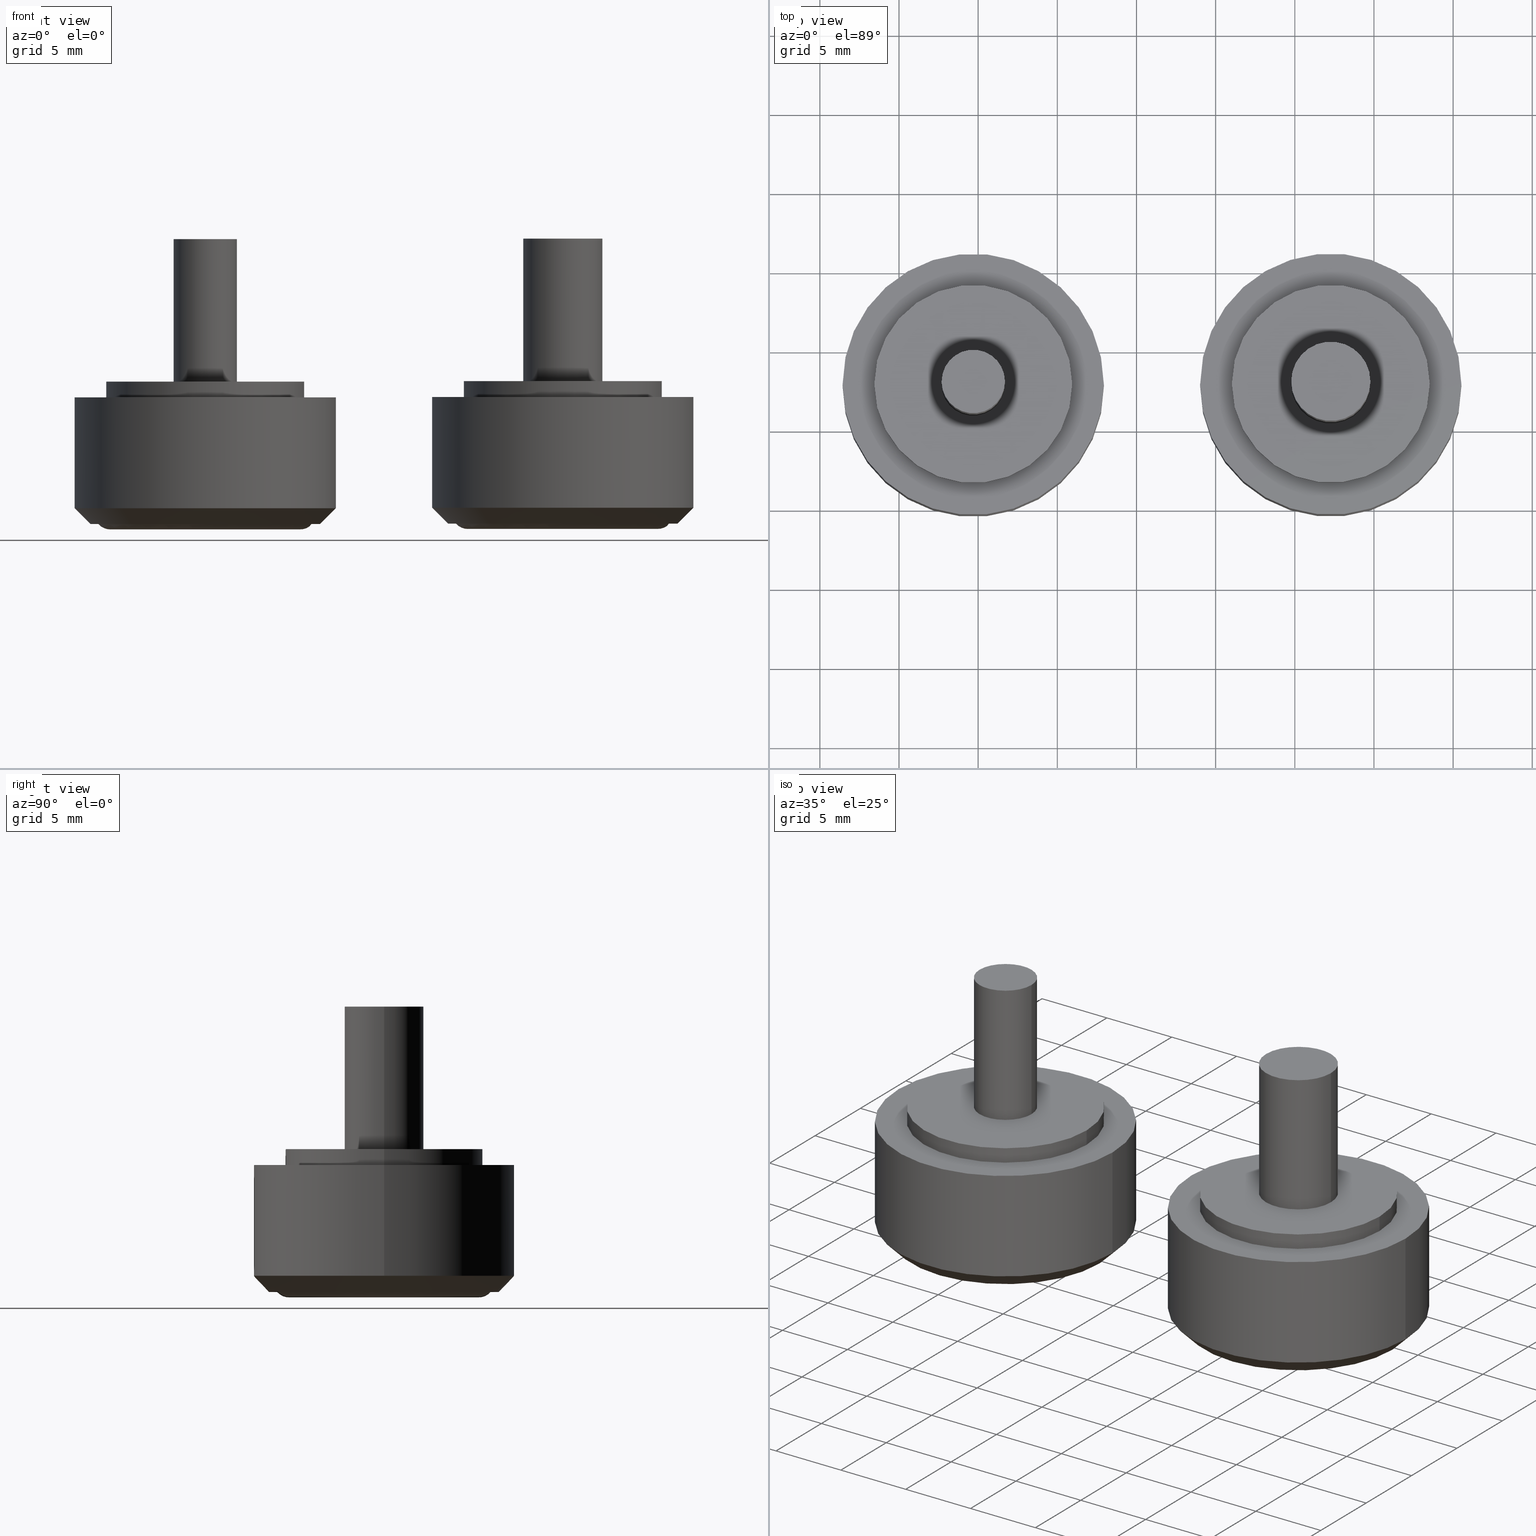
[diagram: canonical four-view strip — front | top / right | iso, engineering-drawing reading convention]
A machine part, canonical four-view strip (front | top / right | iso — engineering-drawing reading convention). The complete STEP part file that produces these views, byte-faithful:
ISO-10303-21;
HEADER;
/* Generated by software containing ST-Developer
 * from STEP Tools, Inc. (www.steptools.com) 
 */

FILE_DESCRIPTION(
/* description */ (''),
/* implementation_level */ '2;1');

FILE_NAME(
/* name */ '\\\\SYNOLOGYNAS\\web\\db2\\PRM4-1\\\X2\B3C4BA74\X0\\\PRM4-
1_M.stp',
/* time_stamp */ '2023-05-04T16:10:28+09:00',
/* author */ ('user'),
/* organization */ (''),
/* preprocessor_version */ 'ST-DEVELOPER v15.6',
/* originating_system */ 'Autodesk Inventor 2015',
/* authorisation */ '');

FILE_SCHEMA (('AUTOMOTIVE_DESIGN { 1 0 10303 214 3 1 1 }'));
ENDSEC;

DATA;
#10=MECHANICAL_DESIGN_GEOMETRIC_PRESENTATION_REPRESENTATION('',(#23,#24),
#508);
#11=ITEM_DEFINED_TRANSFORMATION($,$,#275,#324);
#12=ITEM_DEFINED_TRANSFORMATION($,$,#299,#325);
#13=(
REPRESENTATION_RELATIONSHIP($,$,#523,#525)
REPRESENTATION_RELATIONSHIP_WITH_TRANSFORMATION(#11)
SHAPE_REPRESENTATION_RELATIONSHIP()
);
#14=(
REPRESENTATION_RELATIONSHIP($,$,#524,#525)
REPRESENTATION_RELATIONSHIP_WITH_TRANSFORMATION(#12)
SHAPE_REPRESENTATION_RELATIONSHIP()
);
#15=CONTEXT_DEPENDENT_SHAPE_REPRESENTATION(#13,#521);
#16=CONTEXT_DEPENDENT_SHAPE_REPRESENTATION(#14,#522);
#17=NEXT_ASSEMBLY_USAGE_OCCURRENCE('DR_PRM4-1:1',$,$,#529,#527,$);
#18=NEXT_ASSEMBLY_USAGE_OCCURRENCE('DR_PRM5-1:1',$,$,#529,#528,$);
#19=SHAPE_REPRESENTATION_RELATIONSHIP('SRR','None',#523,#21);
#20=SHAPE_REPRESENTATION_RELATIONSHIP('SRR','None',#524,#22);
#21=ADVANCED_BREP_SHAPE_REPRESENTATION($,(#25),#505);
#22=ADVANCED_BREP_SHAPE_REPRESENTATION($,(#26),#506);
#23=STYLED_ITEM('',(#542),#25);
#24=STYLED_ITEM('',(#543),#26);
#25=MANIFOLD_SOLID_BREP('\X2\C194B9ACB4DC\X0\1',#273);
#26=MANIFOLD_SOLID_BREP('\X2\C194B9ACB4DC\X0\1',#274);
#27=CONICAL_SURFACE('',#289,7.75,45.);
#28=CONICAL_SURFACE('',#313,7.75,45.);
#29=TOROIDAL_SURFACE('',#280,2.5,1.);
#30=TOROIDAL_SURFACE('',#283,6.,1.);
#31=TOROIDAL_SURFACE('',#304,2.5,1.);
#32=TOROIDAL_SURFACE('',#307,6.,1.);
#33=PLANE('',#279);
#34=PLANE('',#286);
#35=PLANE('',#288);
#36=PLANE('',#293);
#37=PLANE('',#297);
#38=PLANE('',#298);
#39=PLANE('',#303);
#40=PLANE('',#310);
#41=PLANE('',#312);
#42=PLANE('',#317);
#43=PLANE('',#321);
#44=PLANE('',#322);
#45=FACE_BOUND('',#90,.T.);
#46=FACE_BOUND('',#93,.T.);
#47=FACE_BOUND('',#95,.T.);
#48=FACE_BOUND('',#97,.T.);
#49=FACE_BOUND('',#99,.T.);
#50=FACE_BOUND('',#101,.T.);
#51=FACE_BOUND('',#103,.T.);
#52=FACE_BOUND('',#106,.T.);
#53=FACE_BOUND('',#108,.T.);
#54=FACE_BOUND('',#110,.T.);
#55=FACE_BOUND('',#112,.T.);
#56=FACE_BOUND('',#115,.T.);
#57=FACE_BOUND('',#117,.T.);
#58=FACE_BOUND('',#119,.T.);
#59=FACE_BOUND('',#121,.T.);
#60=FACE_BOUND('',#123,.T.);
#61=FACE_BOUND('',#125,.T.);
#62=FACE_BOUND('',#128,.T.);
#63=FACE_BOUND('',#130,.T.);
#64=FACE_BOUND('',#132,.T.);
#65=FACE_OUTER_BOUND('',#89,.T.);
#66=FACE_OUTER_BOUND('',#91,.T.);
#67=FACE_OUTER_BOUND('',#92,.T.);
#68=FACE_OUTER_BOUND('',#94,.T.);
#69=FACE_OUTER_BOUND('',#96,.T.);
#70=FACE_OUTER_BOUND('',#98,.T.);
#71=FACE_OUTER_BOUND('',#100,.T.);
#72=FACE_OUTER_BOUND('',#102,.T.);
#73=FACE_OUTER_BOUND('',#104,.T.);
#74=FACE_OUTER_BOUND('',#105,.T.);
#75=FACE_OUTER_BOUND('',#107,.T.);
#76=FACE_OUTER_BOUND('',#109,.T.);
#77=FACE_OUTER_BOUND('',#111,.T.);
#78=FACE_OUTER_BOUND('',#113,.T.);
#79=FACE_OUTER_BOUND('',#114,.T.);
#80=FACE_OUTER_BOUND('',#116,.T.);
#81=FACE_OUTER_BOUND('',#118,.T.);
#82=FACE_OUTER_BOUND('',#120,.T.);
#83=FACE_OUTER_BOUND('',#122,.T.);
#84=FACE_OUTER_BOUND('',#124,.T.);
#85=FACE_OUTER_BOUND('',#126,.T.);
#86=FACE_OUTER_BOUND('',#127,.T.);
#87=FACE_OUTER_BOUND('',#129,.T.);
#88=FACE_OUTER_BOUND('',#131,.T.);
#89=EDGE_LOOP('',(#199));
#90=EDGE_LOOP('',(#200));
#91=EDGE_LOOP('',(#201));
#92=EDGE_LOOP('',(#202));
#93=EDGE_LOOP('',(#203));
#94=EDGE_LOOP('',(#204));
#95=EDGE_LOOP('',(#205));
#96=EDGE_LOOP('',(#206));
#97=EDGE_LOOP('',(#207));
#98=EDGE_LOOP('',(#208));
#99=EDGE_LOOP('',(#209));
#100=EDGE_LOOP('',(#210));
#101=EDGE_LOOP('',(#211));
#102=EDGE_LOOP('',(#212));
#103=EDGE_LOOP('',(#213));
#104=EDGE_LOOP('',(#214));
#105=EDGE_LOOP('',(#215));
#106=EDGE_LOOP('',(#216));
#107=EDGE_LOOP('',(#217));
#108=EDGE_LOOP('',(#218));
#109=EDGE_LOOP('',(#219));
#110=EDGE_LOOP('',(#220));
#111=EDGE_LOOP('',(#221));
#112=EDGE_LOOP('',(#222));
#113=EDGE_LOOP('',(#223));
#114=EDGE_LOOP('',(#224));
#115=EDGE_LOOP('',(#225));
#116=EDGE_LOOP('',(#226));
#117=EDGE_LOOP('',(#227));
#118=EDGE_LOOP('',(#228));
#119=EDGE_LOOP('',(#229));
#120=EDGE_LOOP('',(#230));
#121=EDGE_LOOP('',(#231));
#122=EDGE_LOOP('',(#232));
#123=EDGE_LOOP('',(#233));
#124=EDGE_LOOP('',(#234));
#125=EDGE_LOOP('',(#235));
#126=EDGE_LOOP('',(#236));
#127=EDGE_LOOP('',(#237));
#128=EDGE_LOOP('',(#238));
#129=EDGE_LOOP('',(#239));
#130=EDGE_LOOP('',(#240));
#131=EDGE_LOOP('',(#241));
#132=EDGE_LOOP('',(#242));
#133=CIRCLE('',#277,2.);
#134=CIRCLE('',#278,2.);
#135=CIRCLE('',#281,1.75);
#136=CIRCLE('',#282,3.25);
#137=CIRCLE('',#284,5.25);
#138=CIRCLE('',#285,6.75);
#139=CIRCLE('',#287,7.25);
#140=CIRCLE('',#290,8.25);
#141=CIRCLE('',#292,8.25);
#142=CIRCLE('',#295,6.25);
#143=CIRCLE('',#296,6.25);
#144=CIRCLE('',#301,2.5);
#145=CIRCLE('',#302,2.5);
#146=CIRCLE('',#305,1.75);
#147=CIRCLE('',#306,3.25);
#148=CIRCLE('',#308,5.25);
#149=CIRCLE('',#309,6.75);
#150=CIRCLE('',#311,7.25);
#151=CIRCLE('',#314,8.25);
#152=CIRCLE('',#316,8.25);
#153=CIRCLE('',#319,6.25);
#154=CIRCLE('',#320,6.25);
#155=VERTEX_POINT('',#430);
#156=VERTEX_POINT('',#432);
#157=VERTEX_POINT('',#436);
#158=VERTEX_POINT('',#438);
#159=VERTEX_POINT('',#441);
#160=VERTEX_POINT('',#443);
#161=VERTEX_POINT('',#446);
#162=VERTEX_POINT('',#450);
#163=VERTEX_POINT('',#453);
#164=VERTEX_POINT('',#457);
#165=VERTEX_POINT('',#459);
#166=VERTEX_POINT('',#465);
#167=VERTEX_POINT('',#467);
#168=VERTEX_POINT('',#471);
#169=VERTEX_POINT('',#473);
#170=VERTEX_POINT('',#476);
#171=VERTEX_POINT('',#478);
#172=VERTEX_POINT('',#481);
#173=VERTEX_POINT('',#485);
#174=VERTEX_POINT('',#488);
#175=VERTEX_POINT('',#492);
#176=VERTEX_POINT('',#494);
#177=EDGE_CURVE('',#155,#155,#133,.T.);
#178=EDGE_CURVE('',#156,#156,#134,.T.);
#179=EDGE_CURVE('',#157,#157,#135,.T.);
#180=EDGE_CURVE('',#158,#158,#136,.T.);
#181=EDGE_CURVE('',#159,#159,#137,.T.);
#182=EDGE_CURVE('',#160,#160,#138,.T.);
#183=EDGE_CURVE('',#161,#161,#139,.T.);
#184=EDGE_CURVE('',#162,#162,#140,.T.);
#185=EDGE_CURVE('',#163,#163,#141,.T.);
#186=EDGE_CURVE('',#164,#164,#142,.T.);
#187=EDGE_CURVE('',#165,#165,#143,.T.);
#188=EDGE_CURVE('',#166,#166,#144,.T.);
#189=EDGE_CURVE('',#167,#167,#145,.T.);
#190=EDGE_CURVE('',#168,#168,#146,.T.);
#191=EDGE_CURVE('',#169,#169,#147,.T.);
#192=EDGE_CURVE('',#170,#170,#148,.T.);
#193=EDGE_CURVE('',#171,#171,#149,.T.);
#194=EDGE_CURVE('',#172,#172,#150,.T.);
#195=EDGE_CURVE('',#173,#173,#151,.T.);
#196=EDGE_CURVE('',#174,#174,#152,.T.);
#197=EDGE_CURVE('',#175,#175,#153,.T.);
#198=EDGE_CURVE('',#176,#176,#154,.T.);
#199=ORIENTED_EDGE('',*,*,#177,.F.);
#200=ORIENTED_EDGE('',*,*,#178,.F.);
#201=ORIENTED_EDGE('',*,*,#177,.T.);
#202=ORIENTED_EDGE('',*,*,#179,.F.);
#203=ORIENTED_EDGE('',*,*,#180,.F.);
#204=ORIENTED_EDGE('',*,*,#181,.F.);
#205=ORIENTED_EDGE('',*,*,#182,.F.);
#206=ORIENTED_EDGE('',*,*,#183,.F.);
#207=ORIENTED_EDGE('',*,*,#182,.T.);
#208=ORIENTED_EDGE('',*,*,#181,.T.);
#209=ORIENTED_EDGE('',*,*,#180,.T.);
#210=ORIENTED_EDGE('',*,*,#184,.T.);
#211=ORIENTED_EDGE('',*,*,#183,.T.);
#212=ORIENTED_EDGE('',*,*,#185,.F.);
#213=ORIENTED_EDGE('',*,*,#184,.F.);
#214=ORIENTED_EDGE('',*,*,#179,.T.);
#215=ORIENTED_EDGE('',*,*,#186,.F.);
#216=ORIENTED_EDGE('',*,*,#187,.F.);
#217=ORIENTED_EDGE('',*,*,#186,.T.);
#218=ORIENTED_EDGE('',*,*,#178,.T.);
#219=ORIENTED_EDGE('',*,*,#185,.T.);
#220=ORIENTED_EDGE('',*,*,#187,.T.);
#221=ORIENTED_EDGE('',*,*,#188,.F.);
#222=ORIENTED_EDGE('',*,*,#189,.F.);
#223=ORIENTED_EDGE('',*,*,#188,.T.);
#224=ORIENTED_EDGE('',*,*,#190,.F.);
#225=ORIENTED_EDGE('',*,*,#191,.F.);
#226=ORIENTED_EDGE('',*,*,#192,.F.);
#227=ORIENTED_EDGE('',*,*,#193,.F.);
#228=ORIENTED_EDGE('',*,*,#194,.F.);
#229=ORIENTED_EDGE('',*,*,#193,.T.);
#230=ORIENTED_EDGE('',*,*,#192,.T.);
#231=ORIENTED_EDGE('',*,*,#191,.T.);
#232=ORIENTED_EDGE('',*,*,#195,.T.);
#233=ORIENTED_EDGE('',*,*,#194,.T.);
#234=ORIENTED_EDGE('',*,*,#196,.F.);
#235=ORIENTED_EDGE('',*,*,#195,.F.);
#236=ORIENTED_EDGE('',*,*,#190,.T.);
#237=ORIENTED_EDGE('',*,*,#197,.F.);
#238=ORIENTED_EDGE('',*,*,#198,.F.);
#239=ORIENTED_EDGE('',*,*,#197,.T.);
#240=ORIENTED_EDGE('',*,*,#189,.T.);
#241=ORIENTED_EDGE('',*,*,#196,.T.);
#242=ORIENTED_EDGE('',*,*,#198,.T.);
#243=CYLINDRICAL_SURFACE('',#276,2.);
#244=CYLINDRICAL_SURFACE('',#291,8.25);
#245=CYLINDRICAL_SURFACE('',#294,6.25);
#246=CYLINDRICAL_SURFACE('',#300,2.5);
#247=CYLINDRICAL_SURFACE('',#315,8.25);
#248=CYLINDRICAL_SURFACE('',#318,6.25);
#249=ADVANCED_FACE('',(#65,#45),#243,.T.);
#250=ADVANCED_FACE('',(#66),#33,.T.);
#251=ADVANCED_FACE('',(#67,#46),#29,.T.);
#252=ADVANCED_FACE('',(#68,#47),#30,.T.);
#253=ADVANCED_FACE('',(#69,#48),#34,.F.);
#254=ADVANCED_FACE('',(#70,#49),#35,.F.);
#255=ADVANCED_FACE('',(#71,#50),#27,.T.);
#256=ADVANCED_FACE('',(#72,#51),#244,.T.);
#257=ADVANCED_FACE('',(#73),#36,.F.);
#258=ADVANCED_FACE('',(#74,#52),#245,.T.);
#259=ADVANCED_FACE('',(#75,#53),#37,.T.);
#260=ADVANCED_FACE('',(#76,#54),#38,.T.);
#261=ADVANCED_FACE('',(#77,#55),#246,.T.);
#262=ADVANCED_FACE('',(#78),#39,.T.);
#263=ADVANCED_FACE('',(#79,#56),#31,.T.);
#264=ADVANCED_FACE('',(#80,#57),#32,.T.);
#265=ADVANCED_FACE('',(#81,#58),#40,.F.);
#266=ADVANCED_FACE('',(#82,#59),#41,.F.);
#267=ADVANCED_FACE('',(#83,#60),#28,.T.);
#268=ADVANCED_FACE('',(#84,#61),#247,.T.);
#269=ADVANCED_FACE('',(#85),#42,.F.);
#270=ADVANCED_FACE('',(#86,#62),#248,.T.);
#271=ADVANCED_FACE('',(#87,#63),#43,.T.);
#272=ADVANCED_FACE('',(#88,#64),#44,.T.);
#273=CLOSED_SHELL('',(#249,#250,#251,#252,#253,#254,#255,#256,#257,#258,
#259,#260));
#274=CLOSED_SHELL('',(#261,#262,#263,#264,#265,#266,#267,#268,#269,#270,
#271,#272));
#275=AXIS2_PLACEMENT_3D('placement',#428,#326,#327);
#276=AXIS2_PLACEMENT_3D('',#429,#328,#329);
#277=AXIS2_PLACEMENT_3D('',#431,#330,#331);
#278=AXIS2_PLACEMENT_3D('',#433,#332,#333);
#279=AXIS2_PLACEMENT_3D('',#434,#334,#335);
#280=AXIS2_PLACEMENT_3D('',#435,#336,#337);
#281=AXIS2_PLACEMENT_3D('',#437,#338,#339);
#282=AXIS2_PLACEMENT_3D('',#439,#340,#341);
#283=AXIS2_PLACEMENT_3D('',#440,#342,#343);
#284=AXIS2_PLACEMENT_3D('',#442,#344,#345);
#285=AXIS2_PLACEMENT_3D('',#444,#346,#347);
#286=AXIS2_PLACEMENT_3D('',#445,#348,#349);
#287=AXIS2_PLACEMENT_3D('',#447,#350,#351);
#288=AXIS2_PLACEMENT_3D('',#448,#352,#353);
#289=AXIS2_PLACEMENT_3D('',#449,#354,#355);
#290=AXIS2_PLACEMENT_3D('',#451,#356,#357);
#291=AXIS2_PLACEMENT_3D('',#452,#358,#359);
#292=AXIS2_PLACEMENT_3D('',#454,#360,#361);
#293=AXIS2_PLACEMENT_3D('',#455,#362,#363);
#294=AXIS2_PLACEMENT_3D('',#456,#364,#365);
#295=AXIS2_PLACEMENT_3D('',#458,#366,#367);
#296=AXIS2_PLACEMENT_3D('',#460,#368,#369);
#297=AXIS2_PLACEMENT_3D('',#461,#370,#371);
#298=AXIS2_PLACEMENT_3D('',#462,#372,#373);
#299=AXIS2_PLACEMENT_3D('placement',#463,#374,#375);
#300=AXIS2_PLACEMENT_3D('',#464,#376,#377);
#301=AXIS2_PLACEMENT_3D('',#466,#378,#379);
#302=AXIS2_PLACEMENT_3D('',#468,#380,#381);
#303=AXIS2_PLACEMENT_3D('',#469,#382,#383);
#304=AXIS2_PLACEMENT_3D('',#470,#384,#385);
#305=AXIS2_PLACEMENT_3D('',#472,#386,#387);
#306=AXIS2_PLACEMENT_3D('',#474,#388,#389);
#307=AXIS2_PLACEMENT_3D('',#475,#390,#391);
#308=AXIS2_PLACEMENT_3D('',#477,#392,#393);
#309=AXIS2_PLACEMENT_3D('',#479,#394,#395);
#310=AXIS2_PLACEMENT_3D('',#480,#396,#397);
#311=AXIS2_PLACEMENT_3D('',#482,#398,#399);
#312=AXIS2_PLACEMENT_3D('',#483,#400,#401);
#313=AXIS2_PLACEMENT_3D('',#484,#402,#403);
#314=AXIS2_PLACEMENT_3D('',#486,#404,#405);
#315=AXIS2_PLACEMENT_3D('',#487,#406,#407);
#316=AXIS2_PLACEMENT_3D('',#489,#408,#409);
#317=AXIS2_PLACEMENT_3D('',#490,#410,#411);
#318=AXIS2_PLACEMENT_3D('',#491,#412,#413);
#319=AXIS2_PLACEMENT_3D('',#493,#414,#415);
#320=AXIS2_PLACEMENT_3D('',#495,#416,#417);
#321=AXIS2_PLACEMENT_3D('',#496,#418,#419);
#322=AXIS2_PLACEMENT_3D('',#497,#420,#421);
#323=AXIS2_PLACEMENT_3D('placement',#498,#422,#423);
#324=AXIS2_PLACEMENT_3D('',#499,#424,#425);
#325=AXIS2_PLACEMENT_3D('',#500,#426,#427);
#326=DIRECTION('axis',(0.,0.,1.));
#327=DIRECTION('refdir',(1.,0.,0.));
#328=DIRECTION('center_axis',(0.,0.,1.));
#329=DIRECTION('ref_axis',(-1.,0.,0.));
#330=DIRECTION('center_axis',(0.,0.,1.));
#331=DIRECTION('ref_axis',(-1.,0.,0.));
#332=DIRECTION('center_axis',(0.,0.,-1.));
#333=DIRECTION('ref_axis',(-1.,0.,0.));
#334=DIRECTION('center_axis',(0.,0.,1.));
#335=DIRECTION('ref_axis',(1.,0.,0.));
#336=DIRECTION('center_axis',(0.,0.,-1.));
#337=DIRECTION('ref_axis',(-1.,0.,0.));
#338=DIRECTION('center_axis',(0.,0.,-1.));
#339=DIRECTION('ref_axis',(1.,0.,0.));
#340=DIRECTION('center_axis',(0.,0.,1.));
#341=DIRECTION('ref_axis',(1.,0.,0.));
#342=DIRECTION('center_axis',(0.,0.,-1.));
#343=DIRECTION('ref_axis',(-1.,0.,0.));
#344=DIRECTION('center_axis',(0.,0.,-1.));
#345=DIRECTION('ref_axis',(1.,0.,0.));
#346=DIRECTION('center_axis',(0.,0.,1.));
#347=DIRECTION('ref_axis',(1.,0.,0.));
#348=DIRECTION('center_axis',(0.,0.,1.));
#349=DIRECTION('ref_axis',(1.,0.,0.));
#350=DIRECTION('center_axis',(0.,0.,1.));
#351=DIRECTION('ref_axis',(-1.,0.,0.));
#352=DIRECTION('center_axis',(0.,0.,1.));
#353=DIRECTION('ref_axis',(1.,0.,0.));
#354=DIRECTION('center_axis',(0.,0.,1.));
#355=DIRECTION('ref_axis',(-1.,0.,0.));
#356=DIRECTION('center_axis',(0.,0.,-1.));
#357=DIRECTION('ref_axis',(-1.,0.,0.));
#358=DIRECTION('center_axis',(0.,0.,1.));
#359=DIRECTION('ref_axis',(-1.,0.,0.));
#360=DIRECTION('center_axis',(0.,0.,1.));
#361=DIRECTION('ref_axis',(-1.,0.,0.));
#362=DIRECTION('center_axis',(0.,0.,1.));
#363=DIRECTION('ref_axis',(1.,0.,0.));
#364=DIRECTION('center_axis',(0.,0.,1.));
#365=DIRECTION('ref_axis',(-1.,0.,0.));
#366=DIRECTION('center_axis',(0.,0.,1.));
#367=DIRECTION('ref_axis',(-1.,0.,0.));
#368=DIRECTION('center_axis',(0.,0.,-1.));
#369=DIRECTION('ref_axis',(-1.,0.,0.));
#370=DIRECTION('center_axis',(0.,0.,1.));
#371=DIRECTION('ref_axis',(1.,0.,0.));
#372=DIRECTION('center_axis',(0.,0.,1.));
#373=DIRECTION('ref_axis',(1.,0.,0.));
#374=DIRECTION('axis',(0.,0.,1.));
#375=DIRECTION('refdir',(1.,0.,0.));
#376=DIRECTION('center_axis',(0.,0.,1.));
#377=DIRECTION('ref_axis',(-1.,0.,0.));
#378=DIRECTION('center_axis',(0.,0.,1.));
#379=DIRECTION('ref_axis',(-1.,0.,0.));
#380=DIRECTION('center_axis',(0.,0.,-1.));
#381=DIRECTION('ref_axis',(-1.,0.,0.));
#382=DIRECTION('center_axis',(0.,0.,1.));
#383=DIRECTION('ref_axis',(1.,0.,0.));
#384=DIRECTION('center_axis',(0.,0.,-1.));
#385=DIRECTION('ref_axis',(-1.,0.,0.));
#386=DIRECTION('center_axis',(0.,0.,-1.));
#387=DIRECTION('ref_axis',(1.,0.,0.));
#388=DIRECTION('center_axis',(0.,0.,1.));
#389=DIRECTION('ref_axis',(1.,0.,0.));
#390=DIRECTION('center_axis',(0.,0.,-1.));
#391=DIRECTION('ref_axis',(-1.,0.,0.));
#392=DIRECTION('center_axis',(0.,0.,-1.));
#393=DIRECTION('ref_axis',(1.,0.,0.));
#394=DIRECTION('center_axis',(0.,0.,1.));
#395=DIRECTION('ref_axis',(1.,0.,0.));
#396=DIRECTION('center_axis',(0.,0.,1.));
#397=DIRECTION('ref_axis',(1.,0.,0.));
#398=DIRECTION('center_axis',(0.,0.,1.));
#399=DIRECTION('ref_axis',(-1.,0.,0.));
#400=DIRECTION('center_axis',(0.,0.,1.));
#401=DIRECTION('ref_axis',(1.,0.,0.));
#402=DIRECTION('center_axis',(0.,0.,1.));
#403=DIRECTION('ref_axis',(-1.,0.,0.));
#404=DIRECTION('center_axis',(0.,0.,-1.));
#405=DIRECTION('ref_axis',(-1.,0.,0.));
#406=DIRECTION('center_axis',(0.,0.,1.));
#407=DIRECTION('ref_axis',(-1.,0.,0.));
#408=DIRECTION('center_axis',(0.,0.,1.));
#409=DIRECTION('ref_axis',(-1.,0.,0.));
#410=DIRECTION('center_axis',(0.,0.,1.));
#411=DIRECTION('ref_axis',(1.,0.,0.));
#412=DIRECTION('center_axis',(0.,0.,1.));
#413=DIRECTION('ref_axis',(-1.,0.,0.));
#414=DIRECTION('center_axis',(0.,0.,1.));
#415=DIRECTION('ref_axis',(-1.,0.,0.));
#416=DIRECTION('center_axis',(0.,0.,-1.));
#417=DIRECTION('ref_axis',(-1.,0.,0.));
#418=DIRECTION('center_axis',(0.,0.,1.));
#419=DIRECTION('ref_axis',(1.,0.,0.));
#420=DIRECTION('center_axis',(0.,0.,1.));
#421=DIRECTION('ref_axis',(1.,0.,0.));
#422=DIRECTION('axis',(0.,0.,1.));
#423=DIRECTION('refdir',(1.,0.,0.));
#424=DIRECTION('',(0.,0.,1.));
#425=DIRECTION('',(1.,0.,0.));
#426=DIRECTION('',(-1.14144804719274E-15,-4.23272528138342E-16,1.));
#427=DIRECTION('',(1.,-3.21270787750905E-15,1.14144804719274E-15));
#428=CARTESIAN_POINT('',(0.,0.,0.));
#429=CARTESIAN_POINT('Origin',(0.,0.,9.));
#430=CARTESIAN_POINT('',(2.,2.44929359829471E-16,18.));
#431=CARTESIAN_POINT('Origin',(0.,0.,18.));
#432=CARTESIAN_POINT('',(2.,2.44929359829471E-16,9.));
#433=CARTESIAN_POINT('Origin',(0.,0.,9.));
#434=CARTESIAN_POINT('Origin',(-1.36059011717576E-16,0.,18.));
#435=CARTESIAN_POINT('Origin',(0.,0.,0.661437827766148));
#436=CARTESIAN_POINT('',(-1.75,2.14313189850787E-16,0.));
#437=CARTESIAN_POINT('Origin',(0.,0.,0.));
#438=CARTESIAN_POINT('',(-3.25,3.9801020972289E-16,0.));
#439=CARTESIAN_POINT('Origin',(0.,0.,0.));
#440=CARTESIAN_POINT('Origin',(0.,0.,0.661437827766147));
#441=CARTESIAN_POINT('',(-5.25,6.4293956955236E-16,0.));
#442=CARTESIAN_POINT('Origin',(0.,0.,0.));
#443=CARTESIAN_POINT('',(-6.75,8.26636589424463E-16,0.));
#444=CARTESIAN_POINT('Origin',(0.,0.,0.));
#445=CARTESIAN_POINT('Origin',(-5.32769426885888E-16,0.,0.));
#446=CARTESIAN_POINT('',(7.25,8.87868929381831E-16,0.));
#447=CARTESIAN_POINT('Origin',(0.,0.,0.));
#448=CARTESIAN_POINT('Origin',(-5.32769426885888E-16,0.,0.));
#449=CARTESIAN_POINT('Origin',(0.,0.,0.5));
#450=CARTESIAN_POINT('',(8.25,-1.01033360929657E-15,1.));
#451=CARTESIAN_POINT('Origin',(0.,0.,1.));
#452=CARTESIAN_POINT('Origin',(0.,0.,0.));
#453=CARTESIAN_POINT('',(8.25,1.01033360929657E-15,8.));
#454=CARTESIAN_POINT('Origin',(0.,0.,8.));
#455=CARTESIAN_POINT('Origin',(-5.32769426885888E-16,0.,0.));
#456=CARTESIAN_POINT('Origin',(0.,0.,8.));
#457=CARTESIAN_POINT('',(6.25,7.65404249467096E-16,9.));
#458=CARTESIAN_POINT('Origin',(0.,0.,9.));
#459=CARTESIAN_POINT('',(6.25,7.65404249467096E-16,8.));
#460=CARTESIAN_POINT('Origin',(0.,0.,8.));
#461=CARTESIAN_POINT('Origin',(-3.59843160688966E-16,-1.48029736616688E-16,
9.));
#462=CARTESIAN_POINT('Origin',(-5.32769426885888E-16,0.,8.));
#463=CARTESIAN_POINT('',(0.,0.,0.));
#464=CARTESIAN_POINT('Origin',(0.,0.,9.));
#465=CARTESIAN_POINT('',(2.5,3.06161699786838E-16,18.));
#466=CARTESIAN_POINT('Origin',(0.,0.,18.));
#467=CARTESIAN_POINT('',(2.5,3.06161699786838E-16,9.));
#468=CARTESIAN_POINT('Origin',(0.,0.,9.));
#469=CARTESIAN_POINT('Origin',(-1.18032060367666E-16,4.62592926927149E-17,
18.));
#470=CARTESIAN_POINT('Origin',(0.,0.,0.661437827766148));
#471=CARTESIAN_POINT('',(-1.75,2.14313189850787E-16,0.));
#472=CARTESIAN_POINT('Origin',(0.,0.,0.));
#473=CARTESIAN_POINT('',(-3.25,3.9801020972289E-16,0.));
#474=CARTESIAN_POINT('Origin',(0.,0.,0.));
#475=CARTESIAN_POINT('Origin',(0.,0.,0.661437827766147));
#476=CARTESIAN_POINT('',(-5.25,6.4293956955236E-16,0.));
#477=CARTESIAN_POINT('Origin',(0.,0.,0.));
#478=CARTESIAN_POINT('',(-6.75,8.26636589424463E-16,0.));
#479=CARTESIAN_POINT('Origin',(0.,0.,0.));
#480=CARTESIAN_POINT('Origin',(-5.32769426885888E-16,0.,0.));
#481=CARTESIAN_POINT('',(7.25,8.87868929381831E-16,0.));
#482=CARTESIAN_POINT('Origin',(0.,0.,0.));
#483=CARTESIAN_POINT('Origin',(-5.32769426885888E-16,0.,0.));
#484=CARTESIAN_POINT('Origin',(0.,0.,0.5));
#485=CARTESIAN_POINT('',(8.25,-1.01033360929657E-15,1.));
#486=CARTESIAN_POINT('Origin',(0.,0.,1.));
#487=CARTESIAN_POINT('Origin',(0.,0.,0.));
#488=CARTESIAN_POINT('',(8.25,1.01033360929657E-15,8.));
#489=CARTESIAN_POINT('Origin',(0.,0.,8.));
#490=CARTESIAN_POINT('Origin',(-5.32769426885888E-16,0.,0.));
#491=CARTESIAN_POINT('Origin',(0.,0.,8.));
#492=CARTESIAN_POINT('',(6.25,7.65404249467096E-16,9.));
#493=CARTESIAN_POINT('Origin',(0.,0.,9.));
#494=CARTESIAN_POINT('',(6.25,7.65404249467096E-16,8.));
#495=CARTESIAN_POINT('Origin',(0.,0.,8.));
#496=CARTESIAN_POINT('Origin',(-3.59843160688966E-16,-1.48029736616688E-16,
9.));
#497=CARTESIAN_POINT('Origin',(-5.32769426885888E-16,0.,8.));
#498=CARTESIAN_POINT('',(0.,0.,0.));
#499=CARTESIAN_POINT('',(-10.3112838930425,-2.14007787039719,-8.83071891388307));
#500=CARTESIAN_POINT('',(12.2724481184254,-2.12895743456451,-8.80143351491089));
#501=UNCERTAINTY_MEASURE_WITH_UNIT(LENGTH_MEASURE(0.01),#509,
'DISTANCE_ACCURACY_VALUE',
'Maximum model space distance between geometric entities at asserted c
onnectivities');
#502=UNCERTAINTY_MEASURE_WITH_UNIT(LENGTH_MEASURE(0.01),#509,
'DISTANCE_ACCURACY_VALUE',
'Maximum model space distance between geometric entities at asserted c
onnectivities');
#503=UNCERTAINTY_MEASURE_WITH_UNIT(LENGTH_MEASURE(0.01),#509,
'DISTANCE_ACCURACY_VALUE',
'Maximum model space distance between geometric entities at asserted c
onnectivities');
#504=UNCERTAINTY_MEASURE_WITH_UNIT(LENGTH_MEASURE(1.E-6),#509,
'DISTANCE_ACCURACY_VALUE',
'Maximum model space distance between geometric entities at asserted c
onnectivities');
#505=(
GEOMETRIC_REPRESENTATION_CONTEXT(3)
GLOBAL_UNCERTAINTY_ASSIGNED_CONTEXT((#501))
GLOBAL_UNIT_ASSIGNED_CONTEXT((#509,#512,#510))
REPRESENTATION_CONTEXT('','3D')
);
#506=(
GEOMETRIC_REPRESENTATION_CONTEXT(3)
GLOBAL_UNCERTAINTY_ASSIGNED_CONTEXT((#502))
GLOBAL_UNIT_ASSIGNED_CONTEXT((#509,#512,#510))
REPRESENTATION_CONTEXT('','3D')
);
#507=(
GEOMETRIC_REPRESENTATION_CONTEXT(3)
GLOBAL_UNCERTAINTY_ASSIGNED_CONTEXT((#503))
GLOBAL_UNIT_ASSIGNED_CONTEXT((#509,#512,#510))
REPRESENTATION_CONTEXT('','3D')
);
#508=(
GEOMETRIC_REPRESENTATION_CONTEXT(3)
GLOBAL_UNCERTAINTY_ASSIGNED_CONTEXT((#504))
GLOBAL_UNIT_ASSIGNED_CONTEXT((#509,#512,#510))
REPRESENTATION_CONTEXT('','3D')
);
#509=(
LENGTH_UNIT()
NAMED_UNIT(*)
SI_UNIT(.MILLI.,.METRE.)
);
#510=(
NAMED_UNIT(*)
SI_UNIT($,.STERADIAN.)
SOLID_ANGLE_UNIT()
);
#511=DIMENSIONAL_EXPONENTS(0.,0.,0.,0.,0.,0.,0.);
#512=(
CONVERSION_BASED_UNIT('degree',#514)
NAMED_UNIT(#511)
PLANE_ANGLE_UNIT()
);
#513=(
NAMED_UNIT(*)
PLANE_ANGLE_UNIT()
SI_UNIT($,.RADIAN.)
);
#514=PLANE_ANGLE_MEASURE_WITH_UNIT(PLANE_ANGLE_MEASURE(0.01745329252),#513);
#515=SHAPE_DEFINITION_REPRESENTATION(#518,#523);
#516=SHAPE_DEFINITION_REPRESENTATION(#519,#524);
#517=SHAPE_DEFINITION_REPRESENTATION(#520,#525);
#518=PRODUCT_DEFINITION_SHAPE('',$,#527);
#519=PRODUCT_DEFINITION_SHAPE('',$,#528);
#520=PRODUCT_DEFINITION_SHAPE('',$,#529);
#521=PRODUCT_DEFINITION_SHAPE($,$,#17);
#522=PRODUCT_DEFINITION_SHAPE($,$,#18);
#523=SHAPE_REPRESENTATION('',(#275),#505);
#524=SHAPE_REPRESENTATION('',(#299),#506);
#525=SHAPE_REPRESENTATION('',(#323,#324,#325),#507);
#526=PRODUCT_DEFINITION_CONTEXT('part definition',#537,'design');
#527=PRODUCT_DEFINITION('DR_PRM4-1','DR_PRM4-1',#530,#526);
#528=PRODUCT_DEFINITION('DR_PRM5-1','DR_PRM5-1',#531,#526);
#529=PRODUCT_DEFINITION('PRM4-1_M','PRM4-1_M',#532,#526);
#530=PRODUCT_DEFINITION_FORMATION('',$,#539);
#531=PRODUCT_DEFINITION_FORMATION('',$,#540);
#532=PRODUCT_DEFINITION_FORMATION('',$,#541);
#533=PRODUCT_RELATED_PRODUCT_CATEGORY('DR_PRM4-1','DR_PRM4-1',(#539));
#534=PRODUCT_RELATED_PRODUCT_CATEGORY('DR_PRM5-1','DR_PRM5-1',(#540));
#535=PRODUCT_RELATED_PRODUCT_CATEGORY('PRM4-1_M','PRM4-1_M',(#541));
#536=APPLICATION_PROTOCOL_DEFINITION('international standard',
'automotive_design',2009,#537);
#537=APPLICATION_CONTEXT(
'Core Data for Automotive Mechanical Design Process');
#538=PRODUCT_CONTEXT('part definition',#537,'mechanical');
#539=PRODUCT('DR_PRM4-1','DR_PRM4-1',$,(#538));
#540=PRODUCT('DR_PRM5-1','DR_PRM5-1',$,(#538));
#541=PRODUCT('PRM4-1_M','PRM4-1_M',$,(#538));
#542=PRESENTATION_STYLE_ASSIGNMENT((#544));
#543=PRESENTATION_STYLE_ASSIGNMENT((#545));
#544=SURFACE_STYLE_USAGE(.BOTH.,#546);
#545=SURFACE_STYLE_USAGE(.BOTH.,#547);
#546=SURFACE_SIDE_STYLE($,(#548));
#547=SURFACE_SIDE_STYLE($,(#549));
#548=SURFACE_STYLE_FILL_AREA(#550);
#549=SURFACE_STYLE_FILL_AREA(#551);
#550=FILL_AREA_STYLE($,(#552));
#551=FILL_AREA_STYLE($,(#553));
#552=FILL_AREA_STYLE_COLOUR($,#554);
#553=FILL_AREA_STYLE_COLOUR($,#555);
#554=COLOUR_RGB('',1.,1.,1.);
#555=COLOUR_RGB('',1.,1.,1.);
ENDSEC;
END-ISO-10303-21;
